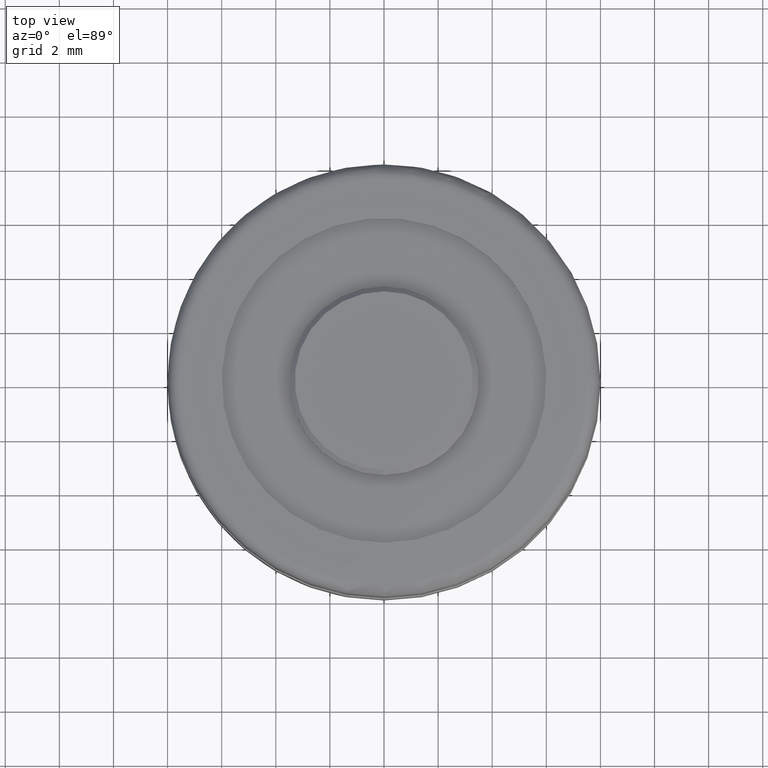
[diagram: clean part render]
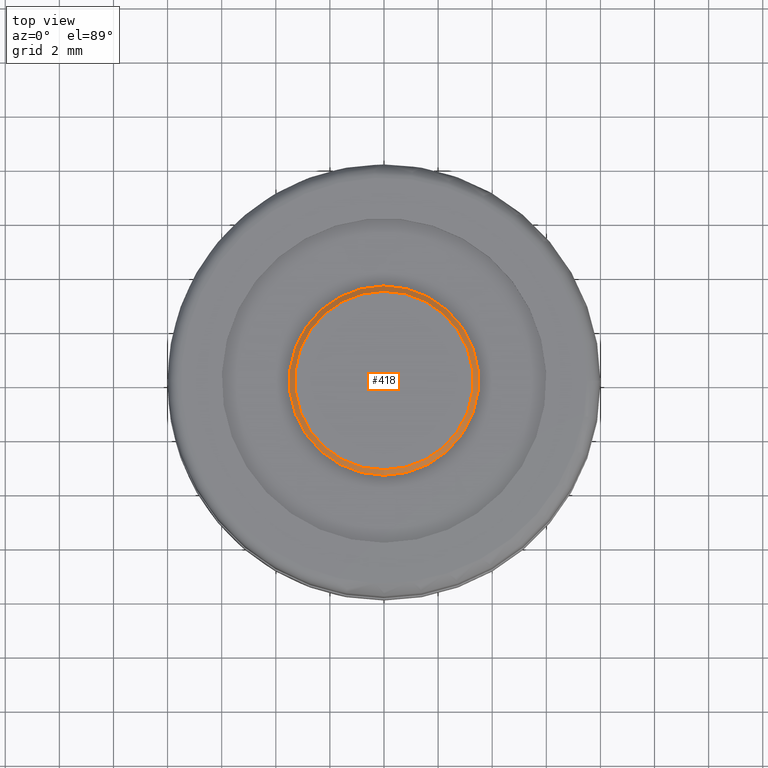
[diagram: same view with one face highlighted and labeled with its STEP entity id]
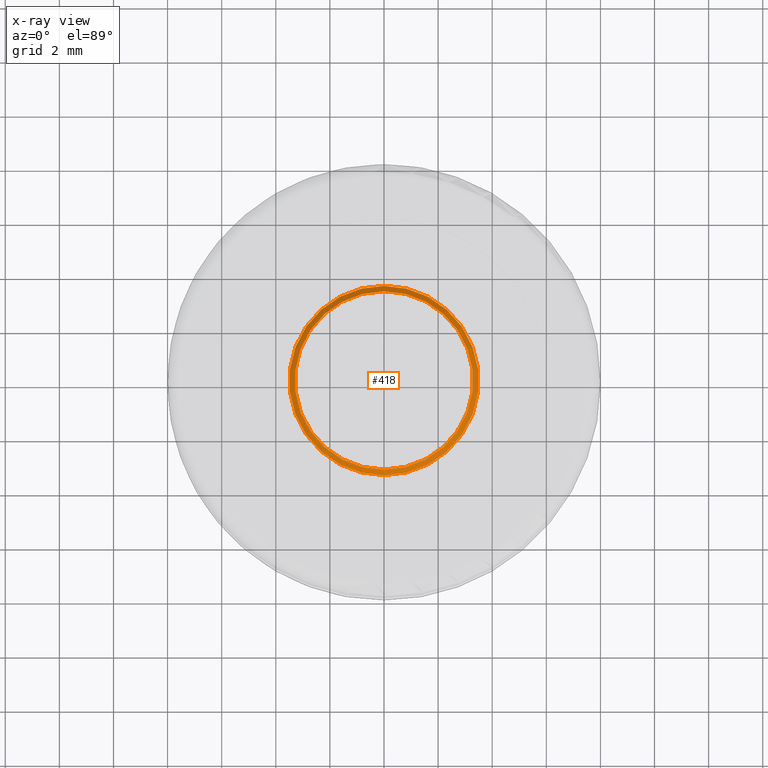
[diagram: x-ray of the same camera — body ghosted, the highlighted face saturated]
A machine part, top view. The second image highlights one B-rep face of the part: STEP entity #418.
The next image is the same camera in x-ray: the body ghosted, the highlighted face saturated — about 0% of this face is hidden behind the body in this view.
In plain terms, the highlighted conical surface has half-angle 45 deg.
Its self-contained STEP definition (entity closure, byte-faithful):
#58=FACE_OUTER_BOUND('',#88,.T.);
#88=EDGE_LOOP('',(#330,#331,#332,#333));
#128=LINE('',#706,#156);
#156=VECTOR('',#570,3.4);
#168=CIRCLE('',#474,3.5);
#169=CIRCLE('',#475,3.3);
#207=VERTEX_POINT('',#703);
#208=VERTEX_POINT('',#705);
#251=EDGE_CURVE('',#207,#207,#168,.T.);
#252=EDGE_CURVE('',#207,#208,#128,.T.);
#253=EDGE_CURVE('',#208,#208,#169,.T.);
#330=ORIENTED_EDGE('',*,*,#251,.F.);
#331=ORIENTED_EDGE('',*,*,#252,.T.);
#332=ORIENTED_EDGE('',*,*,#253,.T.);
#333=ORIENTED_EDGE('',*,*,#252,.F.);
#388=CONICAL_SURFACE('',#473,3.4,0.78539816339745);
#418=ADVANCED_FACE('',(#58),#388,.T.);
#473=AXIS2_PLACEMENT_3D('',#702,#566,#567);
#474=AXIS2_PLACEMENT_3D('',#704,#568,#569);
#475=AXIS2_PLACEMENT_3D('',#707,#571,#572);
#566=DIRECTION('center_axis',(0.,0.,-1.));
#567=DIRECTION('ref_axis',(0.,1.,0.));
#568=DIRECTION('center_axis',(0.,0.,-1.));
#569=DIRECTION('ref_axis',(1.,0.,0.));
#570=DIRECTION('',(8.65956056235494E-17,0.707106781186548,0.707106781186547));
#571=DIRECTION('center_axis',(0.,0.,-1.));
#572=DIRECTION('ref_axis',(1.,0.,0.));
#702=CARTESIAN_POINT('Origin',(0.,0.,4.1));
#703=CARTESIAN_POINT('',(-4.28626379701574E-16,-3.5,4.));
#704=CARTESIAN_POINT('Origin',(0.,0.,4.));
#705=CARTESIAN_POINT('',(-4.04133443718626E-16,-3.3,4.2));
#706=CARTESIAN_POINT('',(-4.163799117101E-16,-3.4,4.1));
#707=CARTESIAN_POINT('Origin',(0.,0.,4.2));